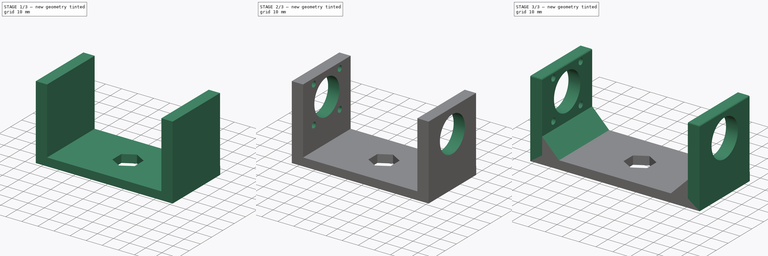
[diagram: build sequence overview — one tinted view per stage of 3, left to right]
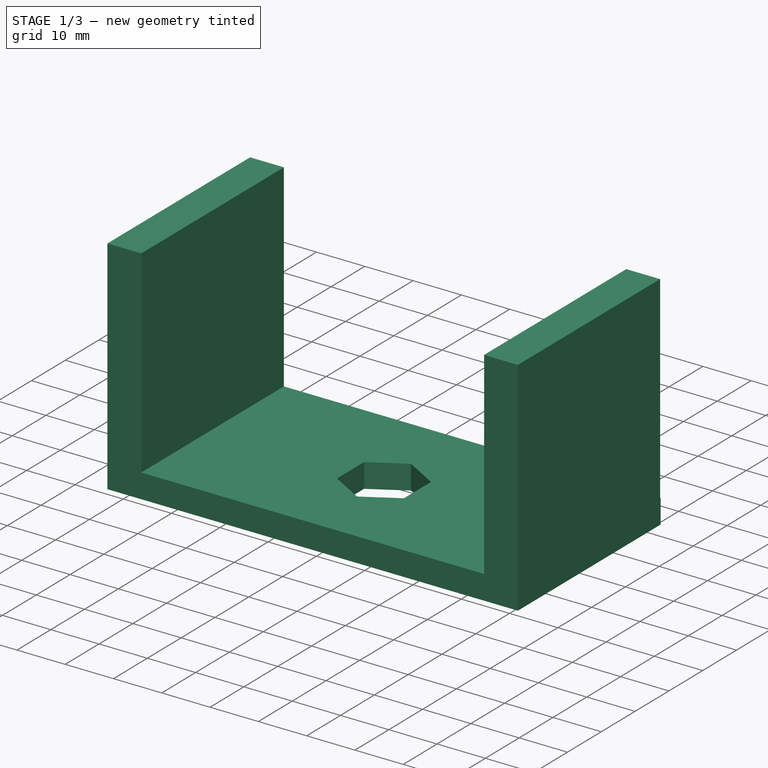
[diagram: stage 1 of 3 — iso view after this stage's code; geometry added in this stage tinted green]
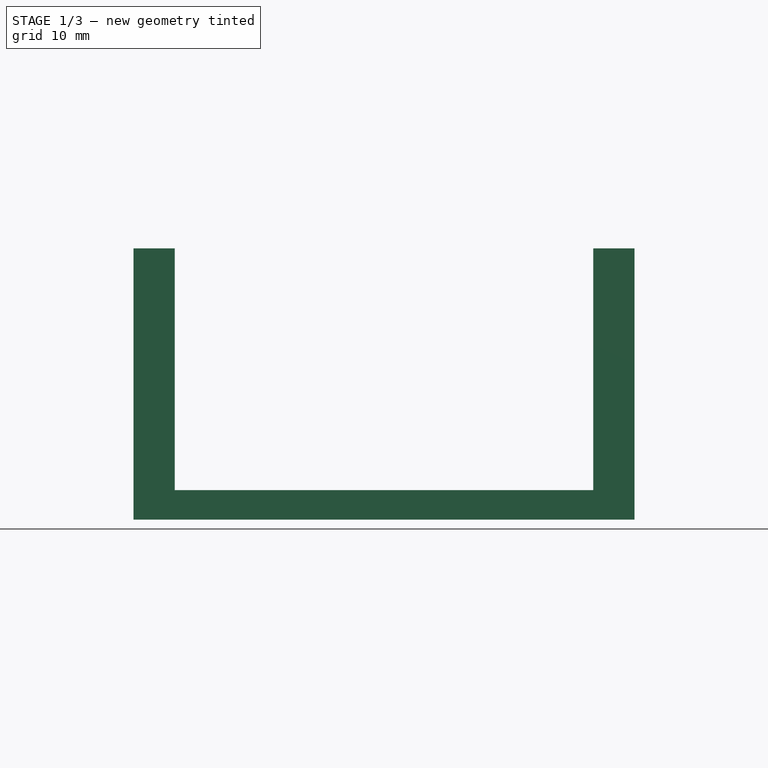
[diagram: stage 1 of 3 — front view after this stage's code; geometry added in this stage tinted green]
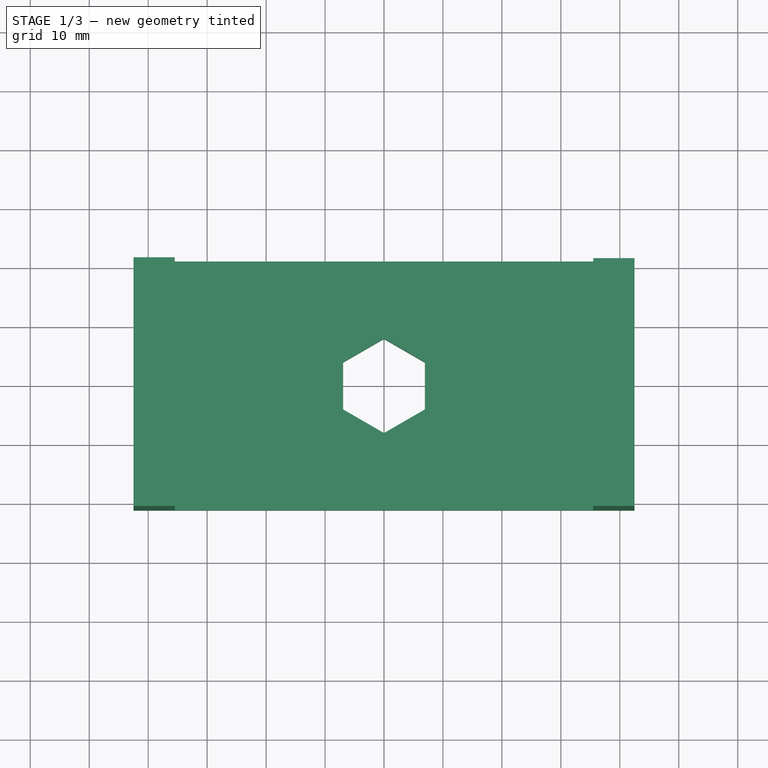
[diagram: stage 1 of 3 — top view after this stage's code; geometry added in this stage tinted green]
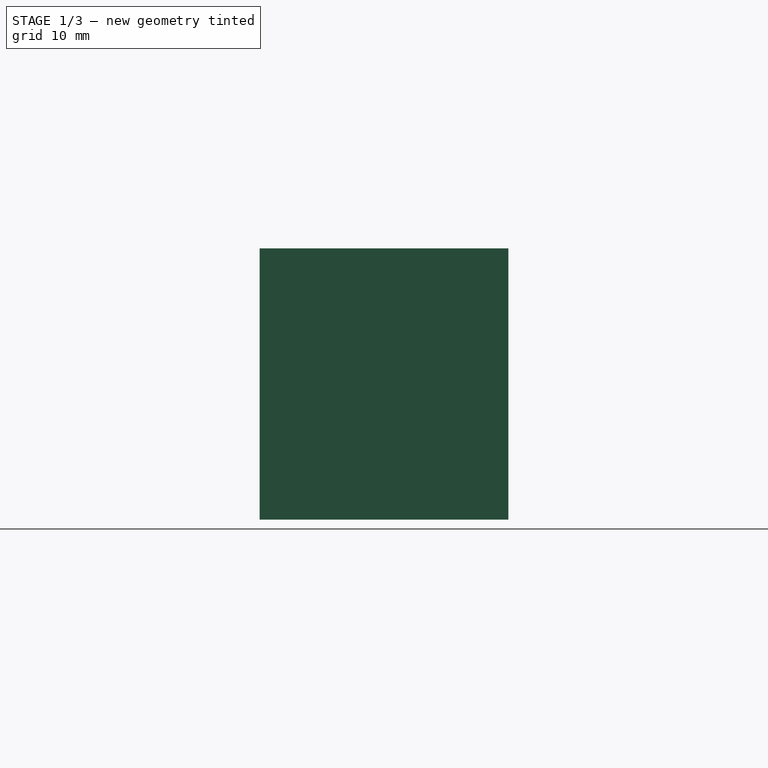
[diagram: stage 1 of 3 — right view after this stage's code; geometry added in this stage tinted green]
FCSTD DOCUMENT  (FreeCAD 0.16R6706 (Git))
Label: full_top_part
License: All rights reserved
LicenseURL: http://en.wikipedia.org/wiki/All_rights_reserved
objects: Sketcher::SketchObject×4, PartDesign::Pad×2, PartDesign::Pocket×2, PartDesign::Chamfer×1, PartDesign::Fillet×1
note: 14 computed .brp shape members not serialized (recipe doc carries the construction recipe); baked Part::Feature solids carry a one-line shape summary decoded from their .brp

FEATURE [Sketcher::SketchObject] Sketch
  sketch-geometry (11):
    g0: LineSegment StartX=-42.5 StartY=21.1 StartZ=0 EndX=42.5 EndY=21.1 EndZ=0
    g1: LineSegment StartX=42.5 StartY=21.1 StartZ=0 EndX=42.5 EndY=-21.1 EndZ=0
    g2: LineSegment StartX=42.5 StartY=-21.1 StartZ=0 EndX=-42.5 EndY=-21.1 EndZ=0
    g3: LineSegment StartX=-42.5 StartY=-21.1 StartZ=0 EndX=-42.5 EndY=21.1 EndZ=0
    g4: LineSegment StartX=6.9282 StartY=-4 StartZ=0 EndX=6.9282 EndY=4 EndZ=0
    g5: LineSegment StartX=6.9282 StartY=4 StartZ=0 EndX=0 EndY=8 EndZ=0
    g6: LineSegment StartX=0 StartY=8 StartZ=0 EndX=-6.9282 EndY=4 EndZ=0
    g7: LineSegment StartX=-6.9282 StartY=4 StartZ=0 EndX=-6.9282 EndY=-4 EndZ=0
    g8: LineSegment StartX=-6.9282 StartY=-4 StartZ=0 EndX=0 EndY=-8 EndZ=0
    g9: LineSegment StartX=0 StartY=-8 StartZ=0 EndX=6.9282 EndY=-4 EndZ=0
    g10: Circle [constr] CenterX=0 CenterY=0 CenterZ=0 NormalX=0 NormalY=0 NormalZ=1 Radius=8
  constraints (27):
    c: Coincident(g0,g1)
    c: Coincident(g1,g2)
    c: Coincident(g2,g3)
    c: Coincident(g3,g0)
    c: Horizontal(g0)
    c: Horizontal(g2)
    c: Vertical(g1)
    c: Vertical(g3)
    c: DistanceX(g0,g0) = 85
    c: DistanceY(g3,g3) = 42.2
    c: Symmetric(g0,g1,g-1)
    c: Coincident(g4,g5)
    c: Coincident(g5,g6)
    c: Coincident(g6,g7)
    c: Coincident(g7,g8)
    c: Coincident(g8,g9)
    c: Coincident(g9,g4)
    c: Equal(g4, g5-g9) x5
    c: PointOnObject(g4,g10)
    c: PointOnObject(g5,g10)
    c: PointOnObject(g6,g10)
    c: PointOnObject(g7,g10)
    c: PointOnObject(g8,g10)
    c: PointOnObject(g9,g10)
    c: Coincident(g10,g-1)
    c: PointOnObject(g5,g-2)
    c: Radius(g10) = 8
FEATURE [PartDesign::Pad] Pad
  Length = 5
  Length2 = 100
  Sketch = -> Sketch
  Type = 0
FEATURE [Sketcher::SketchObject] Sketch001
  ExternalGeometry = -> [Pad]
  Placement = pos=(0,0,5) rot=(0,0,1;0rad)
  Support = -> Pad [Face12]
  sketch-geometry (8):
    g0: LineSegment StartX=-42.5 StartY=21.1 StartZ=0 EndX=-35.5 EndY=21.1 EndZ=0
    g1: LineSegment StartX=-35.5 StartY=21.1 StartZ=0 EndX=-35.5 EndY=-21.1 EndZ=0
    g2: LineSegment StartX=-35.5 StartY=-21.1 StartZ=0 EndX=-42.5 EndY=-21.1 EndZ=0
    g3: LineSegment StartX=-42.5 StartY=-21.1 StartZ=0 EndX=-42.5 EndY=21.1 EndZ=0
    g4: LineSegment StartX=35.5 StartY=20.9465 StartZ=0 EndX=42.5 EndY=20.9465 EndZ=0
    g5: LineSegment StartX=42.5 StartY=20.9465 StartZ=0 EndX=42.5 EndY=-21.1 EndZ=0
    g6: LineSegment StartX=42.5 StartY=-21.1 StartZ=0 EndX=35.5 EndY=-21.1 EndZ=0
    g7: LineSegment StartX=35.5 StartY=-21.1 StartZ=0 EndX=35.5 EndY=20.9465 EndZ=0
  constraints (21):
    c: Coincident(g0,g1)
    c: Coincident(g1,g2)
    c: Coincident(g2,g3)
    c: Coincident(g3,g0)
    c: Horizontal(g0)
    c: Horizontal(g2)
    c: Vertical(g1)
    c: Vertical(g3)
    c: DistanceY(g1,g1) = 42.2
    c: DistanceX(g0,g0) = 7
    c: Coincident(g0,g-3)
    c: Coincident(g4,g5)
    c: Coincident(g5,g6)
    c: Coincident(g6,g7)
    c: Coincident(g7,g4)
    c: Horizontal(g4)
    c: Horizontal(g6)
    c: Vertical(g5)
    c: Vertical(g7)
    c: Coincident(g5,g-4)
    c: DistanceX(g4,g4) = 7
FEATURE [PartDesign::Pad] Pad001
  Length = 41
  Length2 = 100
  Sketch = -> Sketch001
  Type = 0
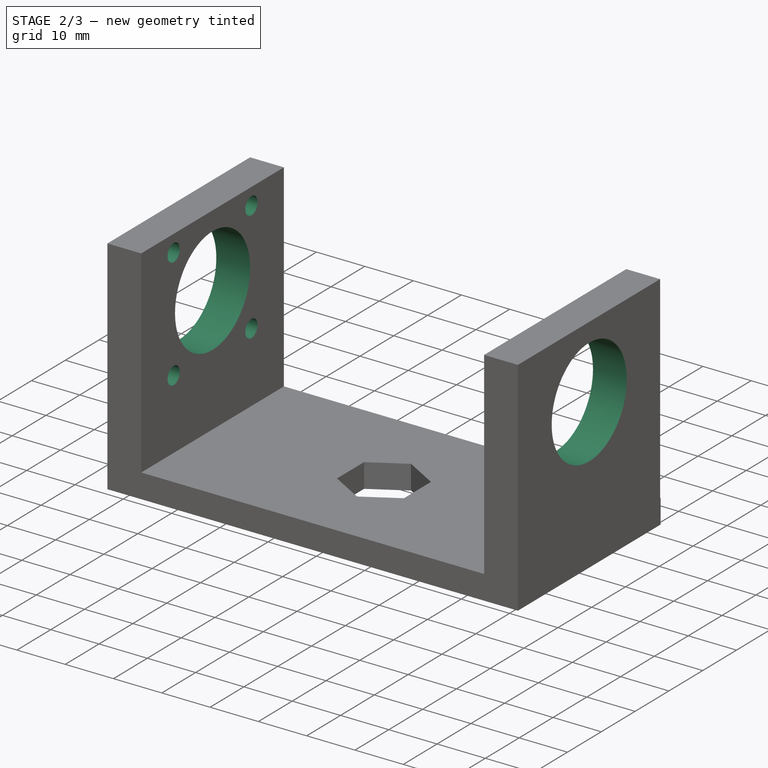
[diagram: stage 2 of 3 — iso view after this stage's code; geometry added in this stage tinted green]
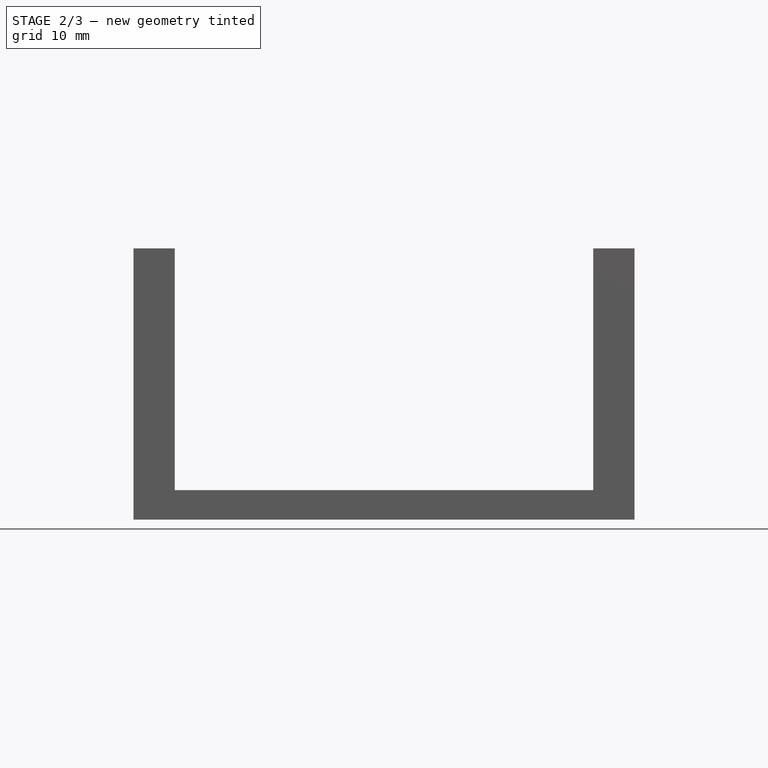
[diagram: stage 2 of 3 — front view after this stage's code; geometry added in this stage tinted green]
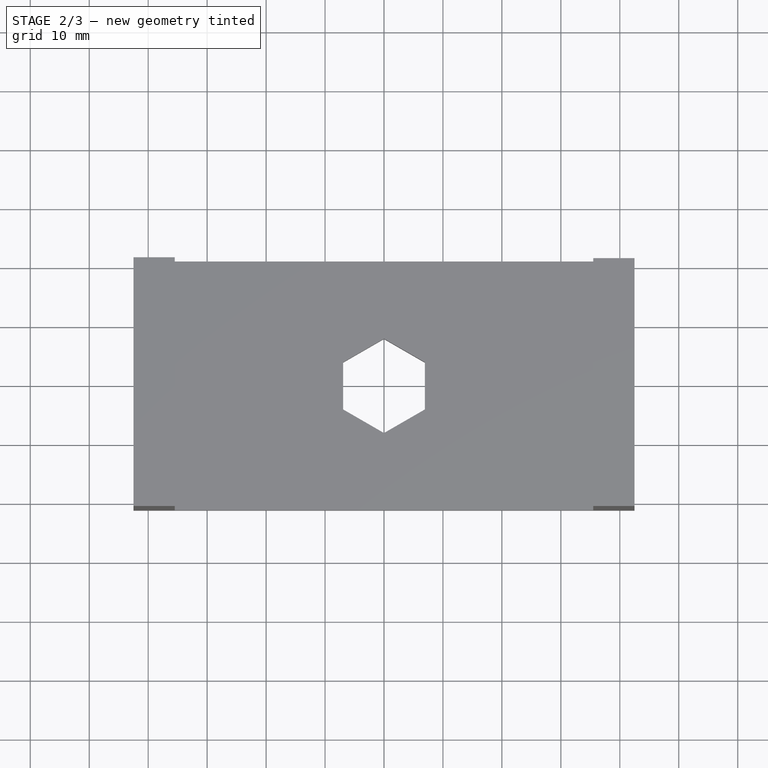
[diagram: stage 2 of 3 — top view after this stage's code; geometry added in this stage tinted green]
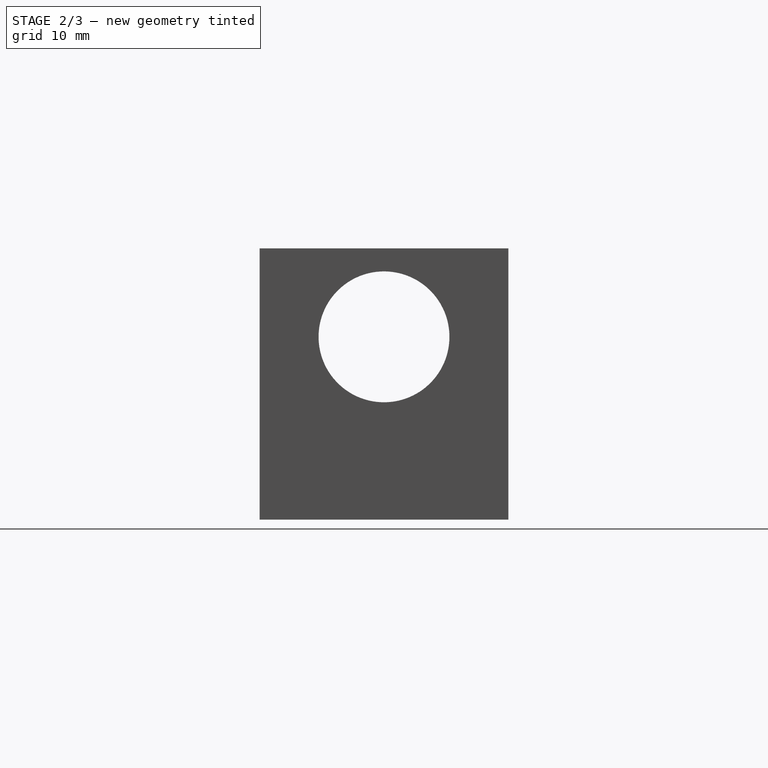
[diagram: stage 2 of 3 — right view after this stage's code; geometry added in this stage tinted green]
FEATURE [Sketcher::SketchObject] Sketch002
  ExternalGeometry = -> [Pad001]
  Placement = pos=(-42.5,0,0) rot=(0.57735,-0.57735,-0.57735;2.0944rad)
  Support = -> Pad001 [Face17]
  sketch-geometry (10):
    g0: LineSegment [constr] StartX=-11.5 StartY=42.5 StartZ=0 EndX=11.5 EndY=42.5 EndZ=0
    g1: LineSegment [constr] StartX=11.5 StartY=42.5 StartZ=0 EndX=11.5 EndY=19.5 EndZ=0
    g2: LineSegment [constr] StartX=11.5 StartY=19.5 StartZ=0 EndX=-11.5 EndY=19.5 EndZ=0
    g3: LineSegment [constr] StartX=-11.5 StartY=19.5 StartZ=0 EndX=-11.5 EndY=42.5 EndZ=0
    g4: GeomPoint [constr] X=0 Y=31 Z=0
    g5: Circle CenterX=-11.5 CenterY=42.5 CenterZ=0 NormalX=0 NormalY=0 NormalZ=1 Radius=1.8
    g6: Circle CenterX=11.5 CenterY=42.5 CenterZ=0 NormalX=0 NormalY=0 NormalZ=1 Radius=1.8
    g7: Circle CenterX=11.5 CenterY=19.5 CenterZ=0 NormalX=0 NormalY=0 NormalZ=1 Radius=1.8
    g8: Circle CenterX=-11.5 CenterY=19.5 CenterZ=0 NormalX=0 NormalY=0 NormalZ=1 Radius=1.8
    g9: Circle CenterX=0 CenterY=31 CenterZ=0 NormalX=0 NormalY=0 NormalZ=1 Radius=11.1
  constraints (23):
    c: Coincident(g0,g1)
    c: Coincident(g1,g2)
    c: Coincident(g2,g3)
    c: Coincident(g3,g0)
    c: Horizontal(g0)
    c: Horizontal(g2)
    c: Vertical(g1)
    c: Vertical(g3)
    c: Equal(g0,g1)
    c: DistanceX(g0,g0) = 23
    c: PointOnObject(g4,g-2)
    c: Symmetric(g0,g1,g4)
    c: DistanceY(g-1,g4) = 31
    c: Coincident(g5,g0)
    c: Coincident(g6,g0)
    c: Coincident(g7,g1)
    c: Coincident(g8,g2)
    c: Radius(g5) = 1.8
    c: Equal(g5,g6)
    c: Equal(g5,g7)
    c: Equal(g5,g8)
    c: Coincident(g9,g4)
    c: Radius(g9) = 11.1
FEATURE [PartDesign::Pocket] Pocket
  Length = 7
  Sketch = -> Sketch002
  Type = 0
FEATURE [Sketcher::SketchObject] Sketch003
  Placement = pos=(42.5,0,0) rot=(0.57735,0.57735,0.57735;2.0944rad)
  Support = -> Pocket [Face14]
  sketch-geometry (2):
    g0: GeomPoint [constr] X=0 Y=31 Z=0
    g1: Circle CenterX=0 CenterY=31 CenterZ=0 NormalX=0 NormalY=0 NormalZ=1 Radius=11.1
  constraints (4):
    c: PointOnObject(g0,g-2)
    c: DistanceY(g-1,g0) = 31
    c: Coincident(g1,g0)
    c: Radius(g1) = 11.1
FEATURE [PartDesign::Pocket] Pocket001
  Length = 7
  Sketch = -> Sketch003
  Type = 0
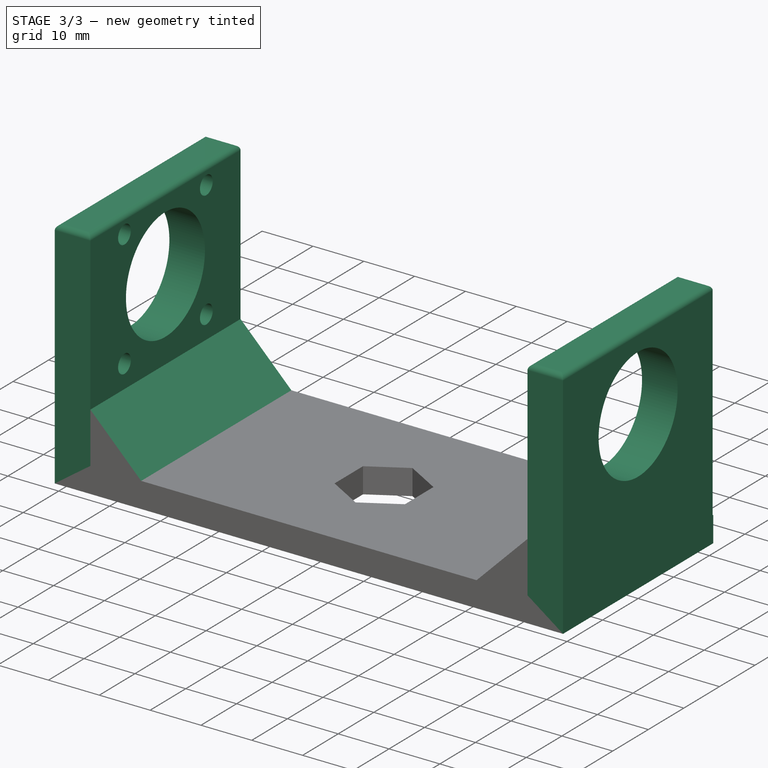
[diagram: stage 3 of 3 — iso view after this stage's code; geometry added in this stage tinted green]
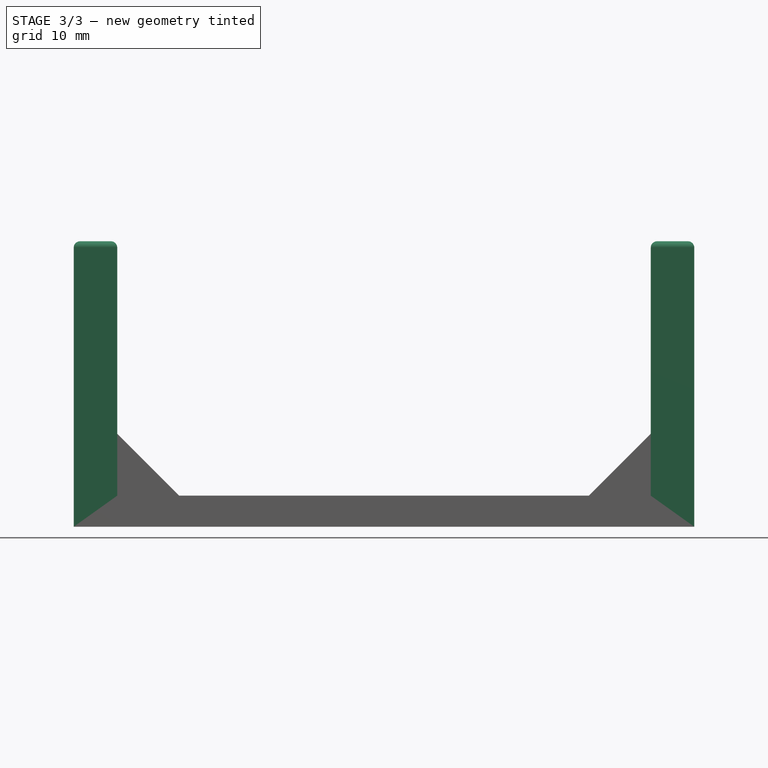
[diagram: stage 3 of 3 — front view after this stage's code; geometry added in this stage tinted green]
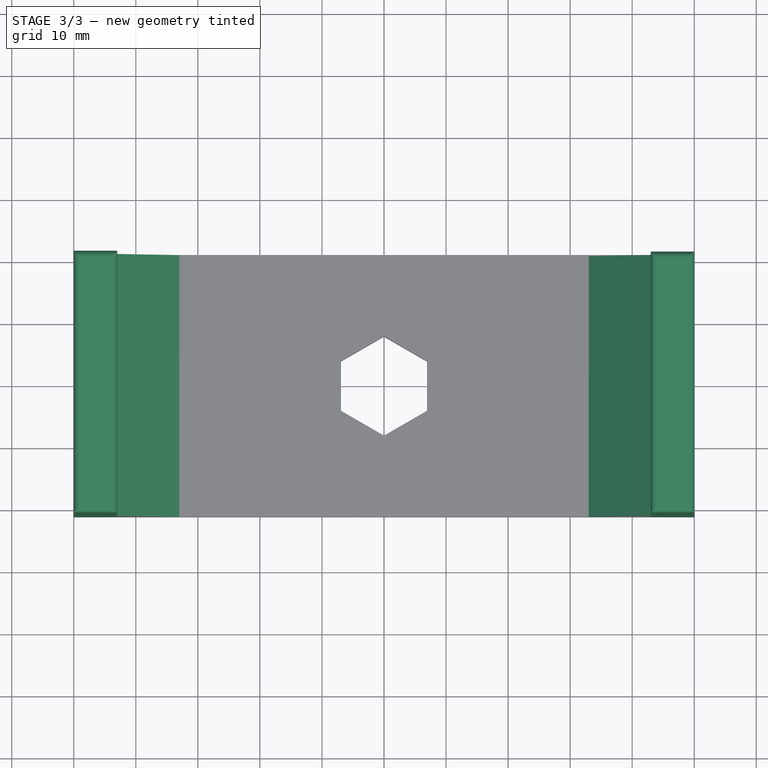
[diagram: stage 3 of 3 — top view after this stage's code; geometry added in this stage tinted green]
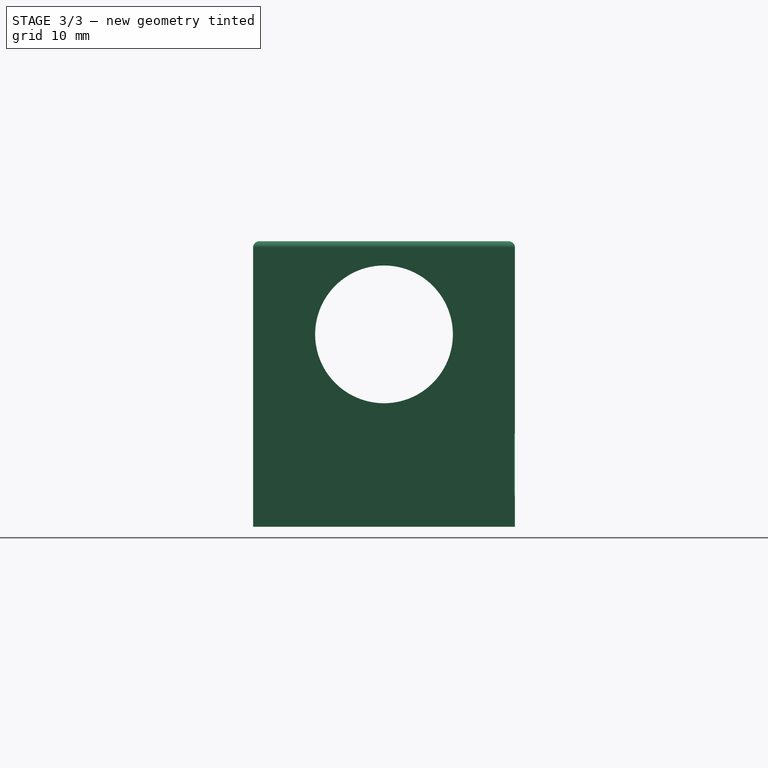
[diagram: stage 3 of 3 — right view after this stage's code; geometry added in this stage tinted green]
FEATURE [PartDesign::Chamfer] Chamfer
  Base = -> Pocket001 [Edge39,Edge38]
  Size = 10
FEATURE [PartDesign::Fillet] Fillet
  Base = -> Chamfer [Edge21,Edge54,Edge61,Edge62,Edge46,Edge69,Edge73,Edge74]
  Radius = 1
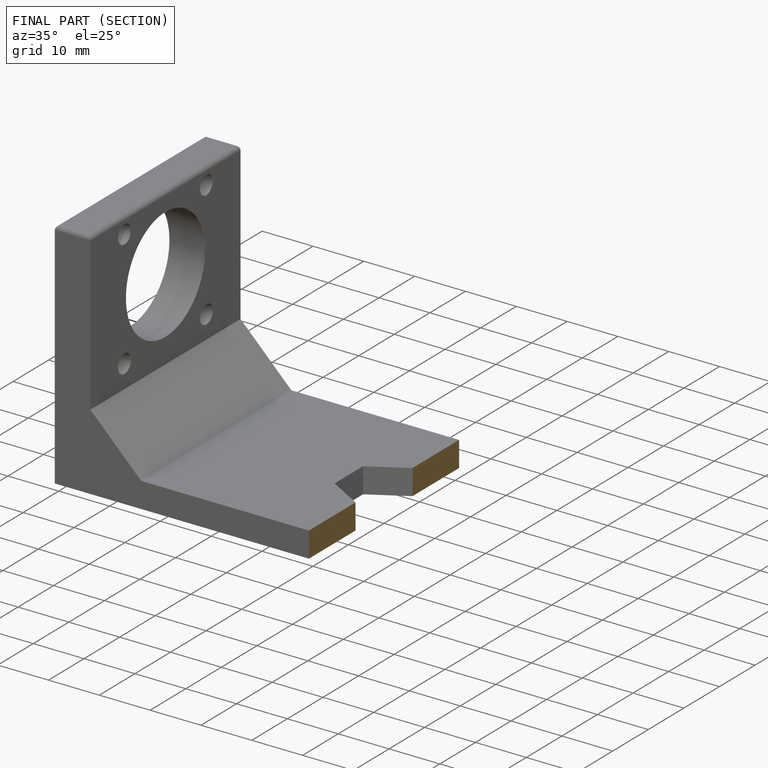
[diagram: finished part — half-section view (interior)]
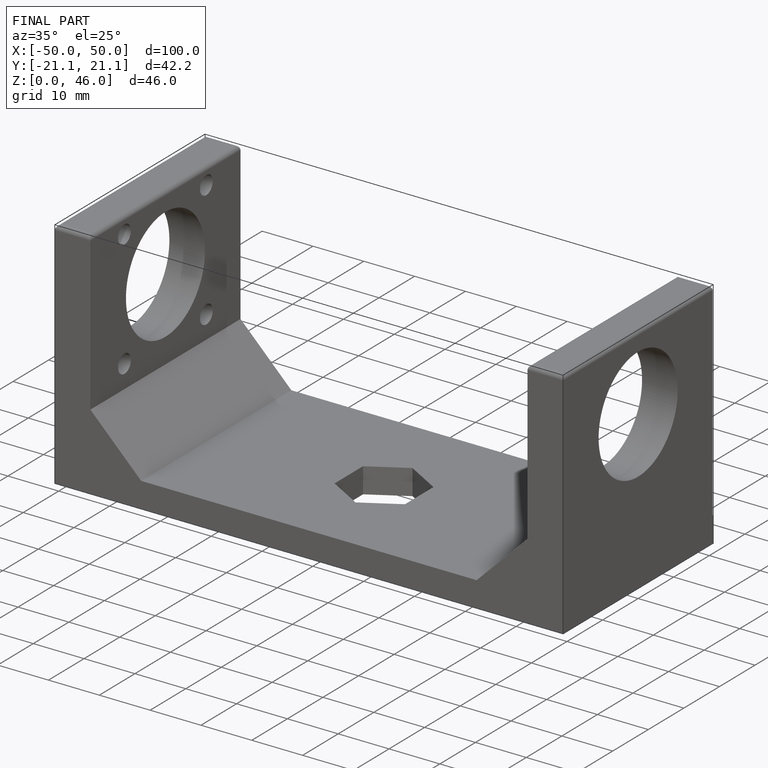
[diagram: finished part — iso view with bounding-box wireframe]
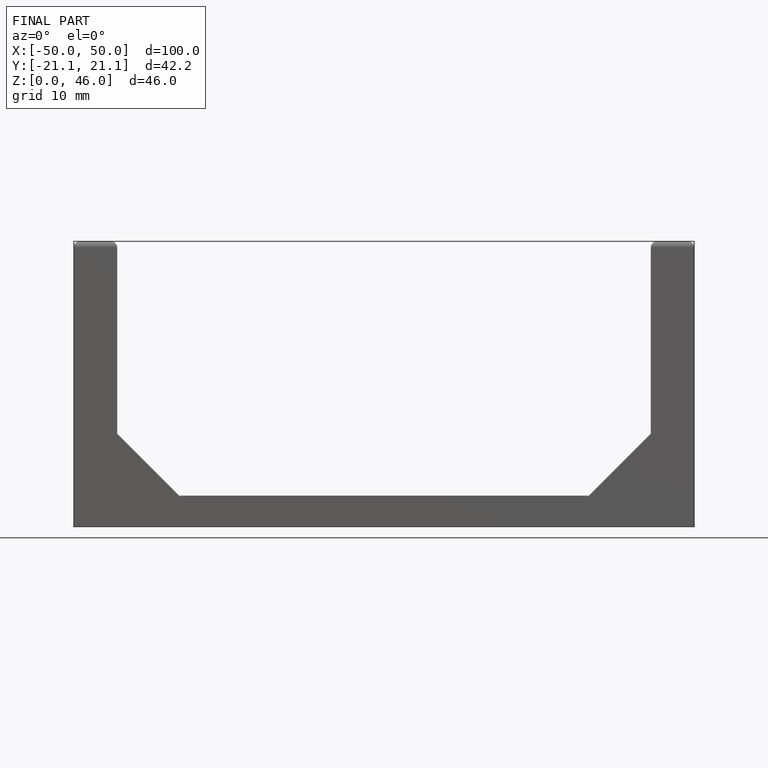
[diagram: finished part — front view with bounding-box wireframe]
